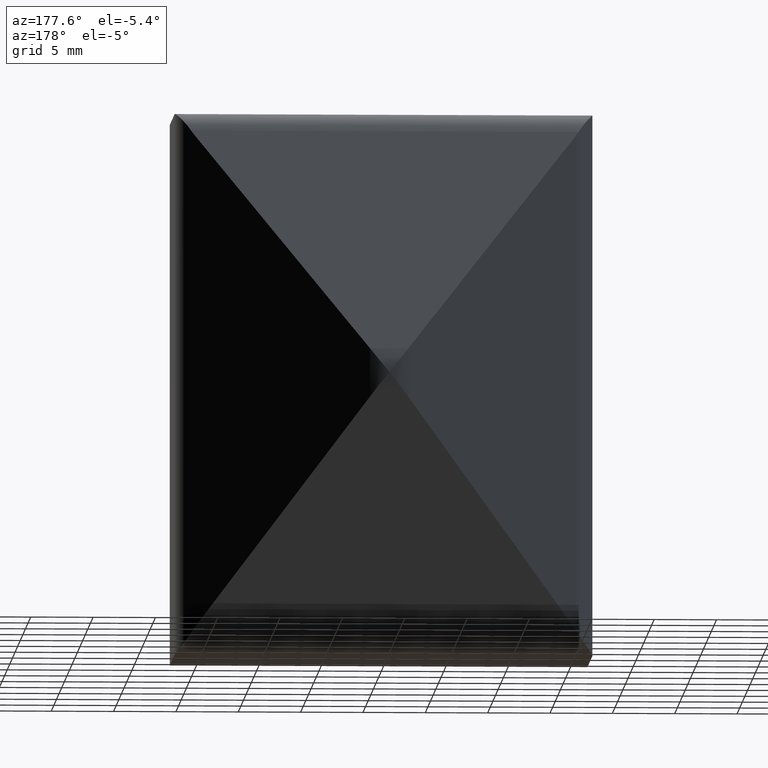
[diagram: clean part render]
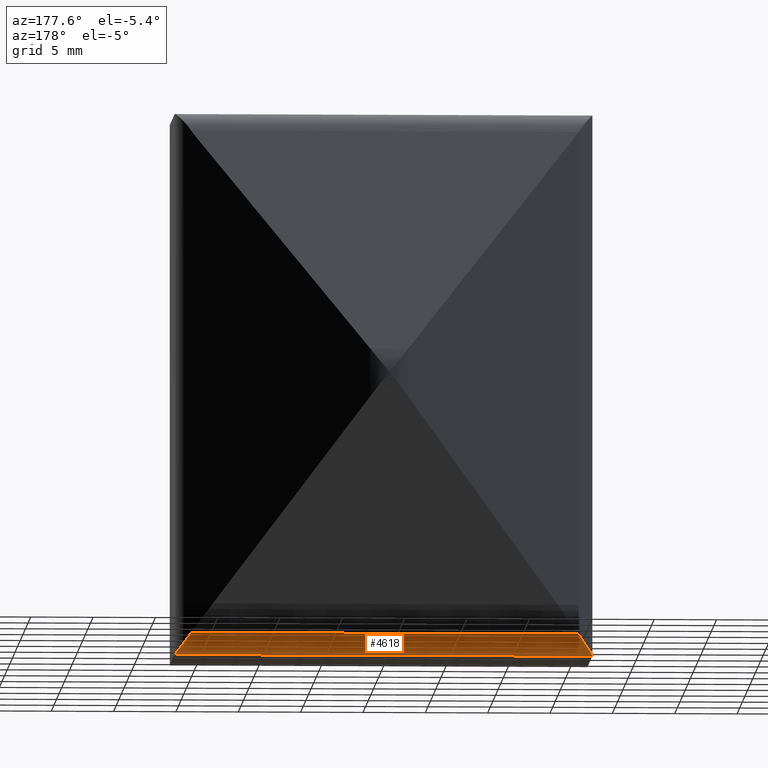
[diagram: same view with one face highlighted and labeled with its STEP entity id]
A machine part, auxiliary view. The second image highlights one B-rep face of the part: STEP entity #4618.
In plain terms, the highlighted cylindrical surface (edge-blend (fillet) strip) has radius 2.6544 mm, axis along (1, 0, -0).
Its self-contained STEP definition (entity closure, byte-faithful):
#1064 = CARTESIAN_POINT ( 'NONE',  ( 15.53236989041276317, 11.70961505891849619, -20.20132888707435015 ) ) ;
#1100 = CARTESIAN_POINT ( 'NONE',  ( -16.40638478427583991, 10.69564828119275646, -21.35472378617253497 ) ) ;
#1176 = CARTESIAN_POINT ( 'NONE',  ( 16.60442991971268967, 10.22910847771391296, -21.58437289162511163 ) ) ;
#1427 = DIRECTION ( 'NONE',  ( -1.307062280233793687E-15, 1.000000000000000000, 0.000000000000000000 ) ) ;
#1739 = B_SPLINE_CURVE_WITH_KNOTS ( 'NONE', 3,
 ( #16785, #17104, #11587, #15605, #15712, #2496, #9149, #1100, #15772, #10323, #11750, #7826, #13021, #13116 ),
 .UNSPECIFIED., .F., .F.,
 ( 4, 2, 2, 2, 2, 2, 4 ),
 ( 4.249187360970369464E-18, 0.0008182723503332175021, 0.001227408525499824356, 0.001636544700666430884, 0.002045680875833037413, 0.002454817050999644375, 0.003273089401332857432 ),
 .UNSPECIFIED. ) ;
#2293 = CARTESIAN_POINT ( 'NONE',  ( 16.09692896685115215, 11.17674144436293204, -20.98432485077248799 ) ) ;
#2487 = B_SPLINE_CURVE_WITH_KNOTS ( 'NONE', 3,
 ( #10453, #5225, #10287, #14282, #14391, #1176, #9120, #11829, #15741, #3764, #2293, #14334, #3708, #1064 ),
 .UNSPECIFIED., .F., .F.,
 ( 4, 2, 2, 2, 2, 2, 4 ),
 ( 0.000000000000000000, 0.0004112258583125507879, 0.0008224517166251015757, 0.001233677574937652472, 0.001644903433250203151, 0.002467355149875301908, 0.003289806866500400665 ),
 .UNSPECIFIED. ) ;
#2496 = CARTESIAN_POINT ( 'NONE',  ( -16.22358229367996429, 10.99760953595601976, -21.13684467474565309 ) ) ;
#3091 = EDGE_CURVE ( 'NONE', #12758, #13969, #6732, .T. ) ;
#3708 = CARTESIAN_POINT ( 'NONE',  ( 15.66867918130274084, 11.60893486939139763, -20.42105435541788339 ) ) ;
#3764 = CARTESIAN_POINT ( 'NONE',  ( 16.23055599966765072, 11.00033405241351403, -21.14613417132414952 ) ) ;
#3775 = CYLINDRICAL_SURFACE ( 'NONE', #8692, 2.654385337577820358 ) ;
#4163 = CARTESIAN_POINT ( 'NONE',  ( -26.75000000000000355, 9.296493103079908948, -21.75000000000000000 ) ) ;
#4281 = EDGE_CURVE ( 'NONE', #12129, #9896, #4838, .T. ) ;
#4618 = ADVANCED_FACE ( 'NONE', ( #11666 ), #3775, .T. ) ;
#4838 = LINE ( 'NONE', #4163, #6698 ) ;
#5225 = CARTESIAN_POINT ( 'NONE',  ( 16.75000000000000355, 9.435916837626141529, -21.75000000000000355 ) ) ;
#5869 = DIRECTION ( 'NONE',  ( -1.000000000000000000, -1.369541201499284725E-15, 0.000000000000000000 ) ) ;
#6399 = ORIENTED_EDGE ( 'NONE', *, *, #9734, .F. ) ;
#6698 = VECTOR ( 'NONE', #5869, 1000.000000000000000 ) ;
#6732 = LINE ( 'NONE', #7501, #8173 ) ;
#7017 = CARTESIAN_POINT ( 'NONE',  ( -15.53236989041281291, 11.70961505891845533, -20.20132888707435015 ) ) ;
#7501 = CARTESIAN_POINT ( 'NONE',  ( -26.75000000000000711, 11.70961505891843935, -20.20132888707435015 ) ) ;
#7826 = CARTESIAN_POINT ( 'NONE',  ( -16.70995727020545729, 9.851522843684373143, -21.70495378420361376 ) ) ;
#8173 = VECTOR ( 'NONE', #8773, 1000.000000000000000 ) ;
#8252 = CARTESIAN_POINT ( 'NONE',  ( -26.75000000000000355, 9.296493103079908948, -19.09561466242217875 ) ) ;
#8644 = CARTESIAN_POINT ( 'NONE',  ( 15.53236989041276317, 11.70961505891849619, -20.20132888707435015 ) ) ;
#8692 = AXIS2_PLACEMENT_3D ( 'NONE', #8252, #13453, #1427 ) ;
#8773 = DIRECTION ( 'NONE',  ( 1.000000000000000000, 1.369541201499284725E-15, -0.000000000000000000 ) ) ;
#9120 = CARTESIAN_POINT ( 'NONE',  ( 16.56163005934021015, 10.35029205173072064, -21.53525582871081667 ) ) ;
#9148 = ORIENTED_EDGE ( 'NONE', *, *, #12553, .F. ) ;
#9149 = CARTESIAN_POINT ( 'NONE',  ( -16.28786870805078735, 10.90062456753934761, -21.21409796190398112 ) ) ;
#9734 = EDGE_CURVE ( 'NONE', #12129, #13969, #2487, .T. ) ;
#9896 = VERTEX_POINT ( 'NONE', #12244 ) ;
#10287 = CARTESIAN_POINT ( 'NONE',  ( 16.74033533030245735, 9.572631146092316357, -21.73909050069356752 ) ) ;
#10323 = CARTESIAN_POINT ( 'NONE',  ( -16.55965060624624030, 10.35558613479571655, -21.53297687906777469 ) ) ;
#10453 = CARTESIAN_POINT ( 'NONE',  ( 16.75000000000000000, 9.296493103079967568, -21.75000000000000000 ) ) ;
#10490 = ORIENTED_EDGE ( 'NONE', *, *, #4281, .T. ) ;
#11587 = CARTESIAN_POINT ( 'NONE',  ( -15.81323455271782841, 11.48398258419699225, -20.61738217118397998 ) ) ;
#11666 = FACE_OUTER_BOUND ( 'NONE', #11760, .T. ) ;
#11750 = CARTESIAN_POINT ( 'NONE',  ( -16.60342860595006798, 10.23206589786678400, -21.58322432880267883 ) ) ;
#11760 = EDGE_LOOP ( 'NONE', ( #10490, #9148, #17175, #6399 ) ) ;
#11829 = CARTESIAN_POINT ( 'NONE',  ( 16.46377361363001413, 10.58147893519188187, -21.42180310184390279 ) ) ;
#12129 = VERTEX_POINT ( 'NONE', #14101 ) ;
#12244 = CARTESIAN_POINT ( 'NONE',  ( -16.74999999999998934, 9.296493103079923159, -21.75000000000000000 ) ) ;
#12553 = EDGE_CURVE ( 'NONE', #12758, #9896, #1739, .T. ) ;
#12758 = VERTEX_POINT ( 'NONE', #7017 ) ;
#13021 = CARTESIAN_POINT ( 'NONE',  ( -16.74999999999998934, 9.575787457362899602, -21.74999999999999645 ) ) ;
#13116 = CARTESIAN_POINT ( 'NONE',  ( -16.74999999999998934, 9.296493103079923159, -21.75000000000000000 ) ) ;
#13453 = DIRECTION ( 'NONE',  ( 1.000000000000000000, 1.369541201499284725E-15, -0.000000000000000000 ) ) ;
#13969 = VERTEX_POINT ( 'NONE', #8644 ) ;
#14101 = CARTESIAN_POINT ( 'NONE',  ( 16.75000000000000000, 9.296493103079967568, -21.75000000000000000 ) ) ;
#14282 = CARTESIAN_POINT ( 'NONE',  ( 16.70326928354632301, 9.841064627597743808, -21.69708704955368717 ) ) ;
#14334 = CARTESIAN_POINT ( 'NONE',  ( 15.81448601036917267, 11.48311307768285694, -20.61918057407262594 ) ) ;
#14391 = CARTESIAN_POINT ( 'NONE',  ( 16.67551108115544167, 9.973934257418351379, -21.66558790018897440 ) ) ;
#15605 = CARTESIAN_POINT ( 'NONE',  ( -16.02207652911910429, 11.25817095843942184, -20.88764222282226868 ) ) ;
#15712 = CARTESIAN_POINT ( 'NONE',  ( -16.09062737394057763, 11.17635213454163789, -20.97352496465788718 ) ) ;
#15741 = CARTESIAN_POINT ( 'NONE',  ( 16.40821662155761373, 10.69218017578038804, -21.35687643289709570 ) ) ;
#15772 = CARTESIAN_POINT ( 'NONE',  ( -16.46115802037955689, 10.58701112602282635, -21.41875388713947359 ) ) ;
#16785 = CARTESIAN_POINT ( 'NONE',  ( -15.53236989041281291, 11.70961505891845533, -20.20132888707435015 ) ) ;
#17104 = CARTESIAN_POINT ( 'NONE',  ( -15.66888271674500643, 11.60878453490744810, -20.42138244692268145 ) ) ;
#17175 = ORIENTED_EDGE ( 'NONE', *, *, #3091, .T. ) ;